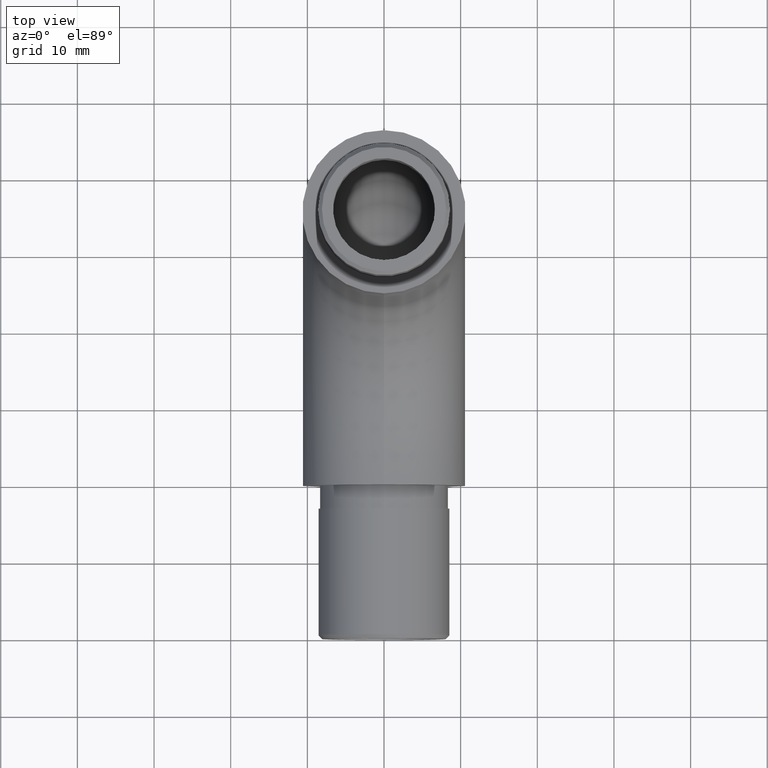
[diagram: clean part render]
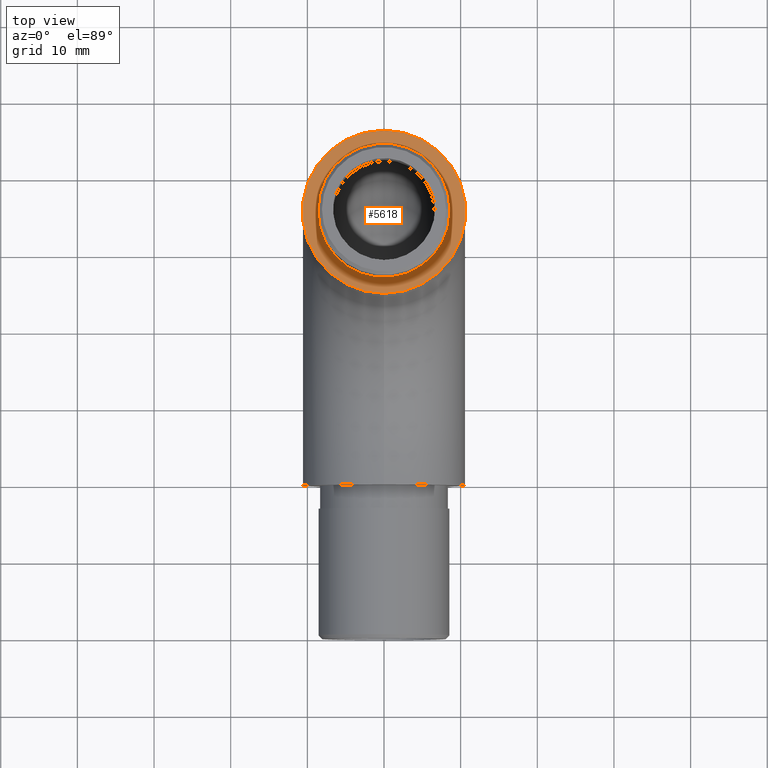
[diagram: same view with one face highlighted and labeled with its STEP entity id]
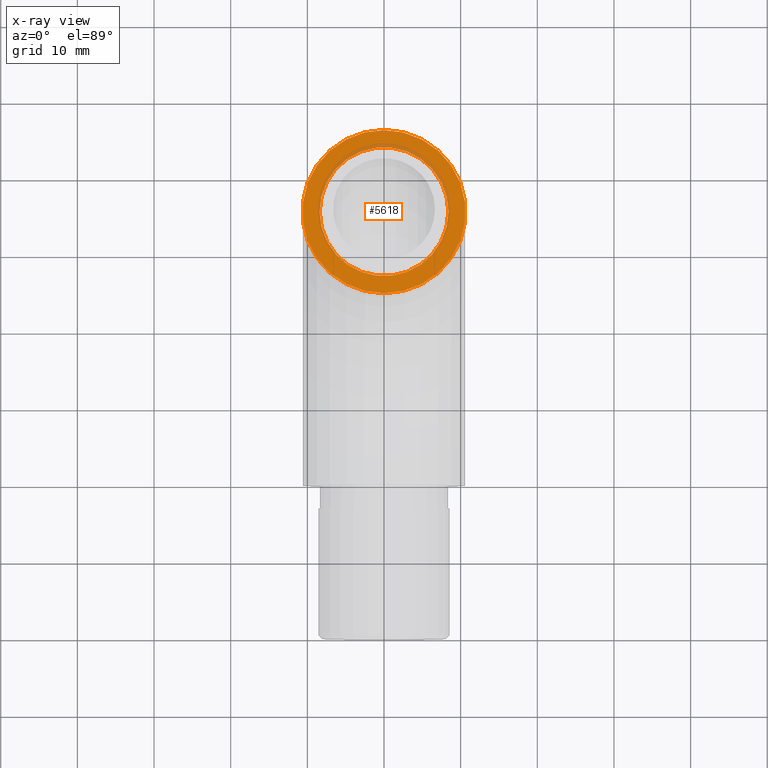
[diagram: x-ray of the same camera — body ghosted, the highlighted face saturated]
A machine part, top view. The second image highlights one B-rep face of the part: STEP entity #5618.
The next image is the same camera in x-ray: the body ghosted, the highlighted face saturated — about 10% of this face is hidden behind the body in this view.
In plain terms, the highlighted planar face has unit normal (0, 0, 1).
Its self-contained STEP definition (entity closure, byte-faithful):
#49 = FACE_BOUND ( 'NONE', #131, .T. ) ;
#131 = EDGE_LOOP ( 'NONE', ( #5607 ) ) ;
#552 = EDGE_LOOP ( 'NONE', ( #5222 ) ) ;
#902 = VERTEX_POINT ( 'NONE', #8841 ) ;
#1287 = AXIS2_PLACEMENT_3D ( 'NONE', #2046, #9601, #11672 ) ;
#2046 = CARTESIAN_POINT ( 'NONE',  ( 0.0000000000000000000, 35.14999999999999900, 45.80000000000000400 ) ) ;
#2657 = CARTESIAN_POINT ( 'NONE',  ( 0.0000000000000000000, 35.14999999999999900, 45.80000000000000400 ) ) ;
#3379 = DIRECTION ( 'NONE',  ( 1.000000000000000000, 0.0000000000000000000, 0.0000000000000000000 ) ) ;
#3957 = DIRECTION ( 'NONE',  ( 0.0000000000000000000, 6.123233995736766000E-017, 1.000000000000000000 ) ) ;
#4364 = DIRECTION ( 'NONE',  ( 0.0000000000000000000, 0.0000000000000000000, 1.000000000000000000 ) ) ;
#5081 = EDGE_CURVE ( 'NONE', #902, #902, #6795, .T. ) ;
#5203 = AXIS2_PLACEMENT_3D ( 'NONE', #2657, #3957, #5993 ) ;
#5222 = ORIENTED_EDGE ( 'NONE', *, *, #8253, .T. ) ;
#5607 = ORIENTED_EDGE ( 'NONE', *, *, #5081, .F. ) ;
#5618 = ADVANCED_FACE ( 'NONE', ( #10330, #49 ), #9699, .T. ) ;
#5993 = DIRECTION ( 'NONE',  ( 0.0000000000000000000, -1.000000000000000000, 0.0000000000000000000 ) ) ;
#6795 = CIRCLE ( 'NONE', #10242, 8.400000000000002100 ) ;
#8253 = EDGE_CURVE ( 'NONE', #10662, #10662, #8773, .T. ) ;
#8773 = CIRCLE ( 'NONE', #5203, 10.65000000000000000 ) ;
#8841 = CARTESIAN_POINT ( 'NONE',  ( 8.400000000000002100, 35.14999999999999900, 45.80000000000000400 ) ) ;
#9601 = DIRECTION ( 'NONE',  ( 0.0000000000000000000, 6.123233995736766000E-017, 1.000000000000000000 ) ) ;
#9699 = PLANE ( 'NONE',  #1287 ) ;
#9914 = CARTESIAN_POINT ( 'NONE',  ( 0.0000000000000000000, 24.50000000000000000, 45.80000000000000400 ) ) ;
#10242 = AXIS2_PLACEMENT_3D ( 'NONE', #10789, #4364, #3379 ) ;
#10330 = FACE_OUTER_BOUND ( 'NONE', #552, .T. ) ;
#10662 = VERTEX_POINT ( 'NONE', #9914 ) ;
#10789 = CARTESIAN_POINT ( 'NONE',  ( 0.0000000000000000000, 35.14999999999999900, 45.80000000000000400 ) ) ;
#11672 = DIRECTION ( 'NONE',  ( 0.0000000000000000000, -1.000000000000000000, 6.123233995736766000E-017 ) ) ;